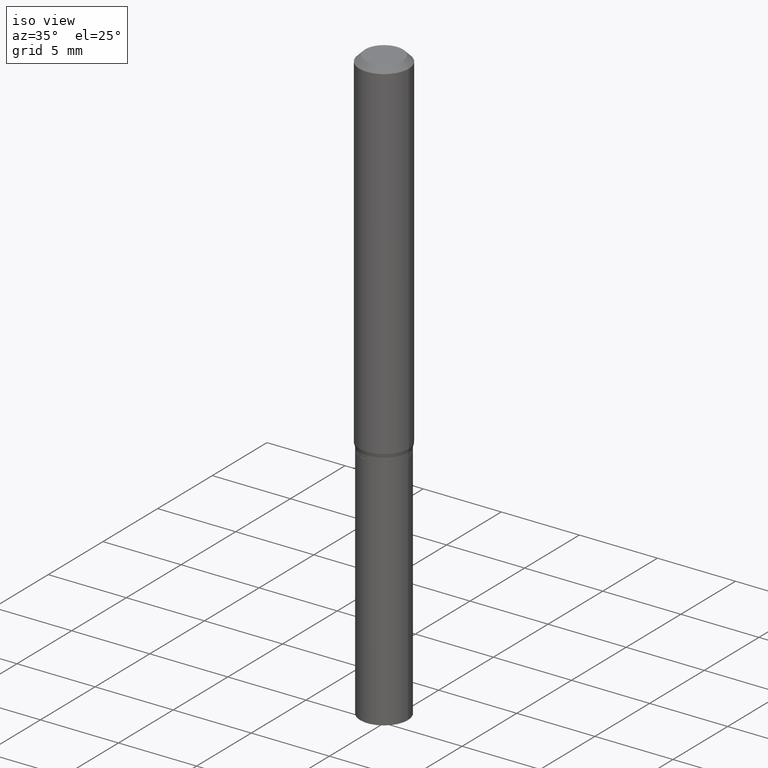
[diagram: clean part render]
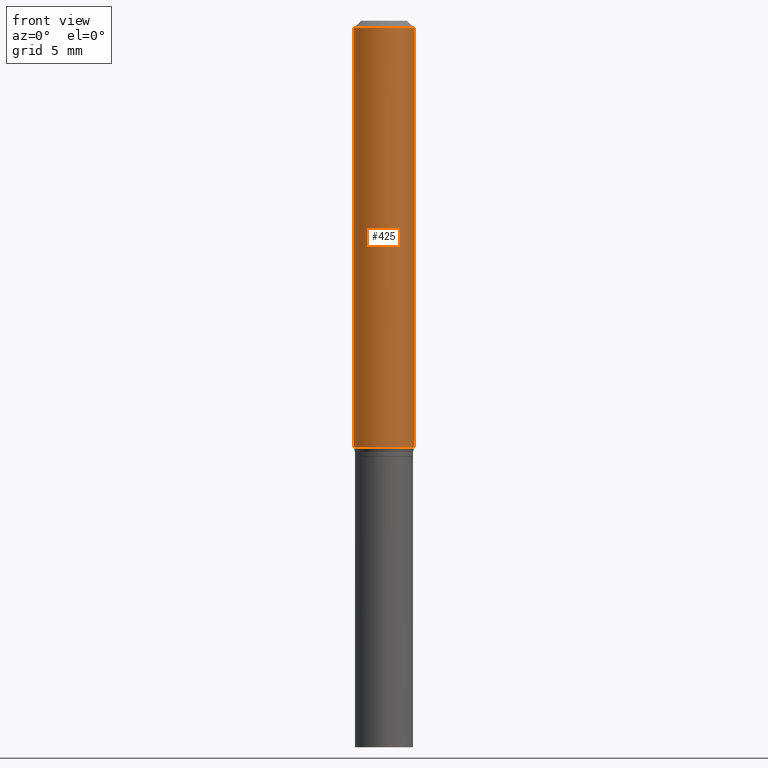
[diagram: tour spotlight — one face highlighted and labeled with its STEP entity id]
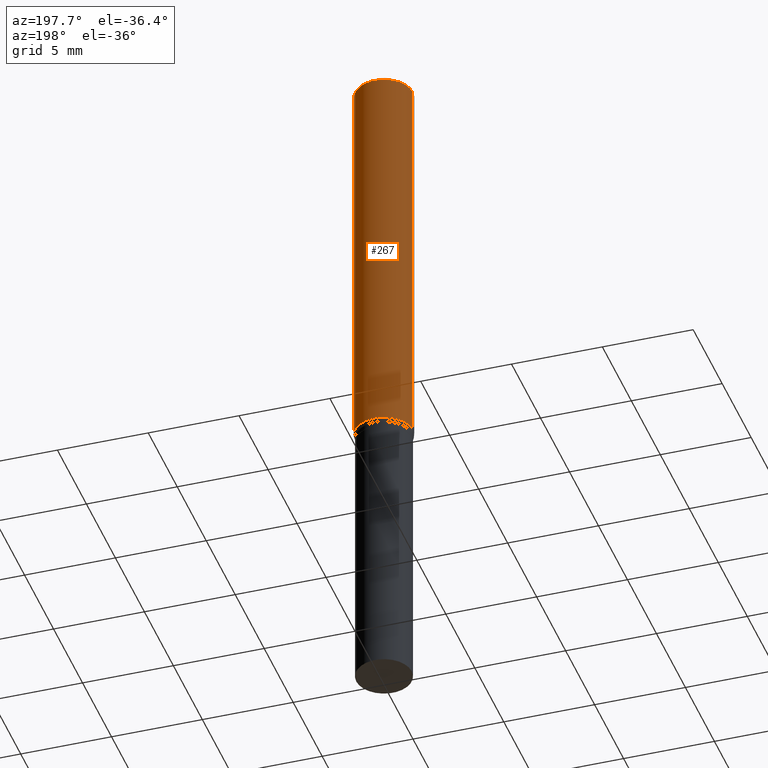
[diagram: tour spotlight — one face highlighted and labeled with its STEP entity id]
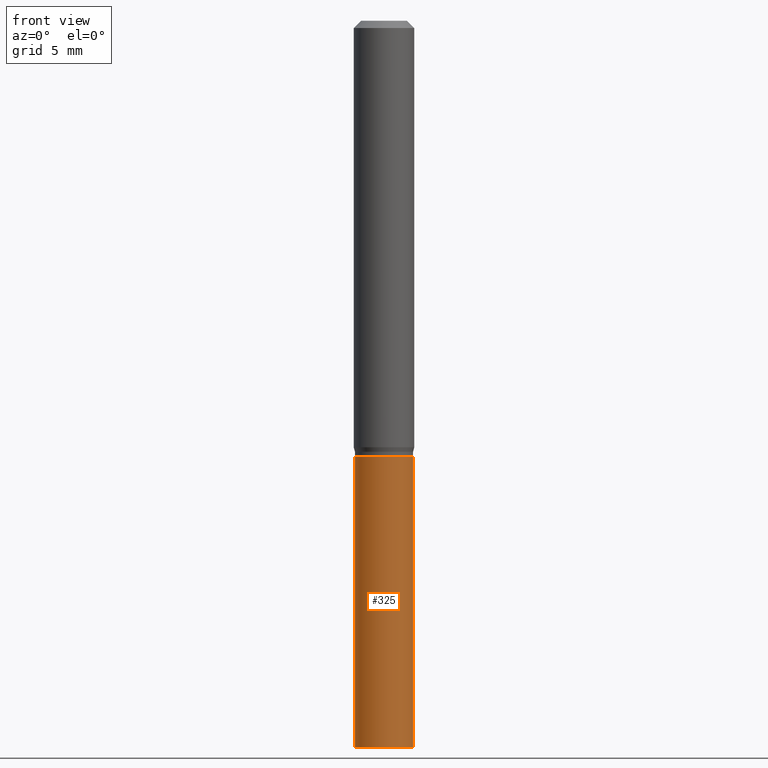
[diagram: tour spotlight — one face highlighted and labeled with its STEP entity id]
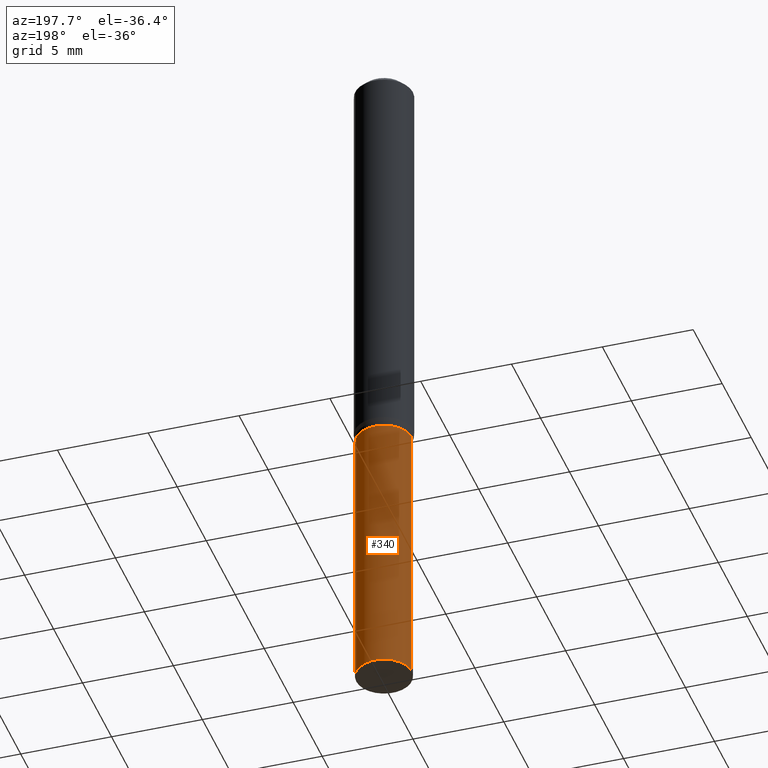
[diagram: tour spotlight — one face highlighted and labeled with its STEP entity id]
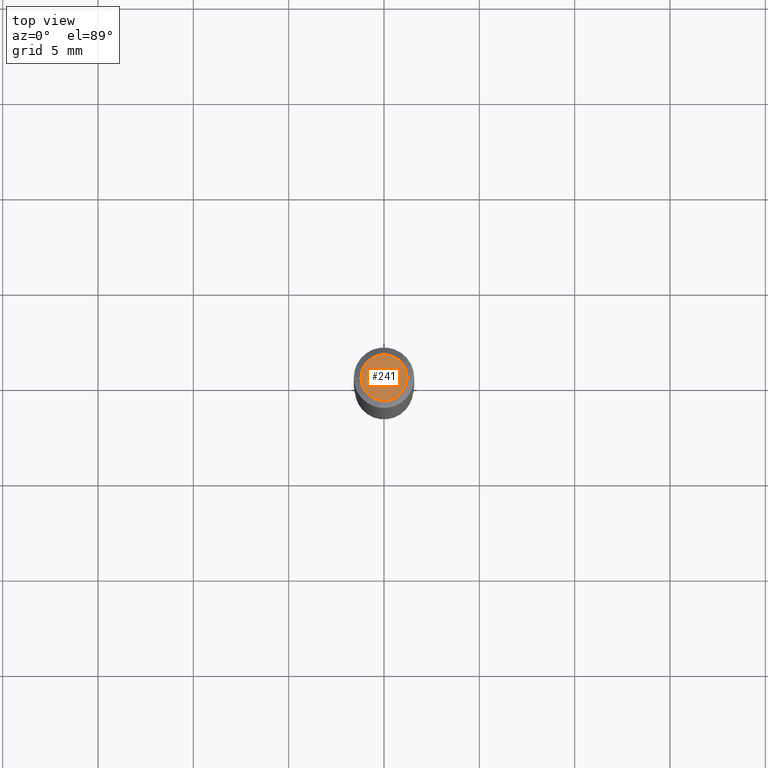
[diagram: tour spotlight — one face highlighted and labeled with its STEP entity id]
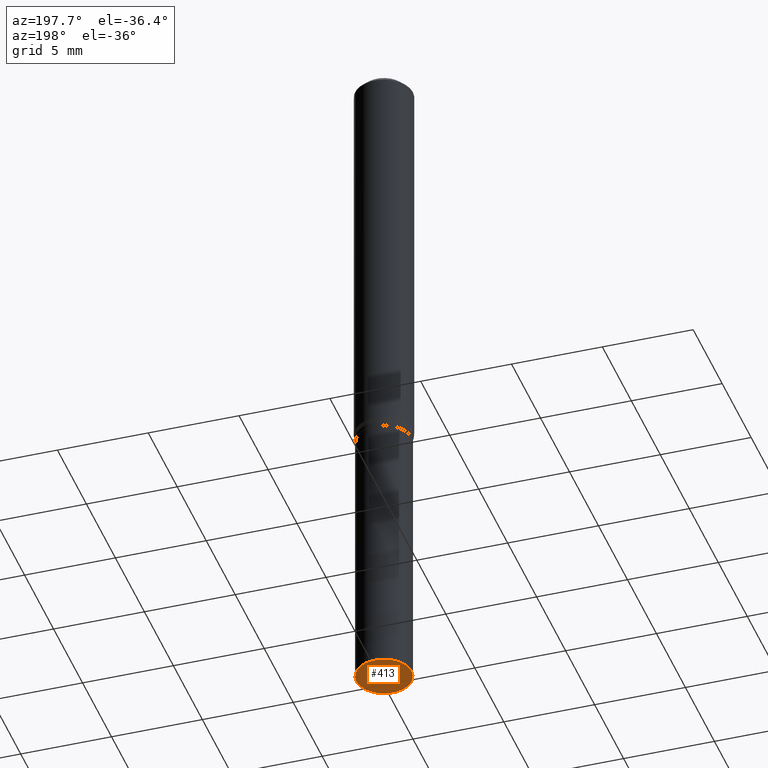
[diagram: tour spotlight — one face highlighted and labeled with its STEP entity id]
A machine part: a face-by-face anatomy tour. The part has 16 B-rep faces; the first image is the clean iso view, then the 6 largest visible faces are spotlighted one at a time (largest first), each with its STEP entity span.

Face 1 — front view, entity #425. In plain terms, the highlighted cylindrical surface (edge-blend (fillet) strip) has radius 1.5875 mm, axis along (-0, 0, 1).
Definition (entity closure, byte-faithful):
#19 = VERTEX_POINT ( 'NONE', #88 ) ;
#22 = EDGE_CURVE ( 'NONE', #263, #113, #366, .T. ) ;
#25 = VECTOR ( 'NONE', #125, 39.37007874015748143 ) ;
#31 = CARTESIAN_POINT ( 'NONE',  ( -0.06250000000000000000, -2.630753217344736608E-15, -0.8806698729810786830 ) ) ;
#47 = CARTESIAN_POINT ( 'NONE',  ( 0.06250000000000000000, -4.364351673553916694E-16, 3.047610484872459871E-30 ) ) ;
#54 = CARTESIAN_POINT ( 'NONE',  ( 2.153650702922254231E-29, -3.074842427194799224E-15, -0.8806698729810786830 ) ) ;
#59 = EDGE_CURVE ( 'NONE', #263, #19, #235, .T. ) ;
#63 = EDGE_CURVE ( 'NONE', #19, #266, #193, .T. ) ;
#67 = CARTESIAN_POINT ( 'NONE',  ( 3.668203209277705088E-31, -5.237222008264718399E-17, -0.01499999999999999944 ) ) ;
#79 = VECTOR ( 'NONE', #408, 39.37007874015748143 ) ;
#86 = CARTESIAN_POINT ( 'NONE',  ( -0.06250000000000000000, -1.119518113788660733E-15, -0.01499999999999999944 ) ) ;
#88 = CARTESIAN_POINT ( 'NONE',  ( 0.06250000000000000000, -3.511277594550191288E-15, -0.8806698729810786830 ) ) ;
#113 = VERTEX_POINT ( 'NONE', #86 ) ;
#120 = DIRECTION ( 'NONE',  ( 1.000000000000000000, -6.982962677686270655E-15, 0.000000000000000000 ) ) ;
#125 = DIRECTION ( 'NONE',  ( -2.445468806185136877E-29, 3.491481338843145188E-15, 1.000000000000000000 ) ) ;
#162 = DIRECTION ( 'NONE',  ( -2.445468806185136597E-29, 3.491481338843145583E-15, 1.000000000000000000 ) ) ;
#167 = DIRECTION ( 'NONE',  ( 1.000000000000000000, -6.982962677686266711E-15, 0.000000000000000000 ) ) ;
#170 = CIRCLE ( 'NONE', #274, 0.06250000000000000000 ) ;
#174 = DIRECTION ( 'NONE',  ( 1.000000000000000000, -6.982962677686266711E-15, 4.876176775795935793E-29 ) ) ;
#193 = LINE ( 'NONE', #47, #79 ) ;
#201 = CARTESIAN_POINT ( 'NONE',  ( -0.06250000000000000000, 4.440892098500626162E-16, -3.074334431409316114E-30 ) ) ;
#212 = FACE_OUTER_BOUND ( 'NONE', #256, .T. ) ;
#213 = ORIENTED_EDGE ( 'NONE', *, *, #63, .T. ) ;
#235 = CIRCLE ( 'NONE', #352, 0.06250000000000000000 ) ;
#251 = ORIENTED_EDGE ( 'NONE', *, *, #59, .T. ) ;
#255 = EDGE_CURVE ( 'NONE', #113, #266, #170, .T. ) ;
#256 = EDGE_LOOP ( 'NONE', ( #283, #251, #213, #459 ) ) ;
#263 = VERTEX_POINT ( 'NONE', #31 ) ;
#266 = VERTEX_POINT ( 'NONE', #313 ) ;
#274 = AXIS2_PLACEMENT_3D ( 'NONE', #67, #162, #167 ) ;
#283 = ORIENTED_EDGE ( 'NONE', *, *, #22, .F. ) ;
#313 = CARTESIAN_POINT ( 'NONE',  ( 0.06250000000000000000, -4.888073874380388472E-16, -0.01499999999999999944 ) ) ;
#339 = DIRECTION ( 'NONE',  ( -2.445468806185136597E-29, 3.491481338843145583E-15, 1.000000000000000000 ) ) ;
#352 = AXIS2_PLACEMENT_3D ( 'NONE', #54, #339, #120 ) ;
#366 = LINE ( 'NONE', #201, #25 ) ;
#398 = DIRECTION ( 'NONE',  ( -2.445468806185136597E-29, 3.491481338843145583E-15, 1.000000000000000000 ) ) ;
#408 = DIRECTION ( 'NONE',  ( -2.445468806185136877E-29, 3.491481338843145188E-15, 1.000000000000000000 ) ) ;
#420 = AXIS2_PLACEMENT_3D ( 'NONE', #434, #398, #174 ) ;
#425 = ADVANCED_FACE ( 'NONE', ( #212 ), #428, .T. ) ;
#428 = CYLINDRICAL_SURFACE ( 'NONE', #420, 0.06250000000000000000 ) ;
#434 = CARTESIAN_POINT ( 'NONE',  ( 0.000000000000000000, 0.000000000000000000, 0.000000000000000000 ) ) ;
#459 = ORIENTED_EDGE ( 'NONE', *, *, #255, .F. ) ;

Face 2 — auxiliary view, entity #267. In plain terms, the highlighted cylindrical surface (edge-blend (fillet) strip) has radius 1.5875 mm, axis along (-0, 0, 1).
Definition (entity closure, byte-faithful):
#14 = DIRECTION ( 'NONE',  ( 1.000000000000000000, -6.982962677686270655E-15, 0.000000000000000000 ) ) ;
#19 = VERTEX_POINT ( 'NONE', #88 ) ;
#22 = EDGE_CURVE ( 'NONE', #263, #113, #366, .T. ) ;
#23 = DIRECTION ( 'NONE',  ( -2.445468806185136597E-29, 3.491481338843145583E-15, 1.000000000000000000 ) ) ;
#25 = VECTOR ( 'NONE', #125, 39.37007874015748143 ) ;
#31 = CARTESIAN_POINT ( 'NONE',  ( -0.06250000000000000000, -2.630753217344736608E-15, -0.8806698729810786830 ) ) ;
#38 = EDGE_LOOP ( 'NONE', ( #106, #73, #321, #179 ) ) ;
#47 = CARTESIAN_POINT ( 'NONE',  ( 0.06250000000000000000, -4.364351673553916694E-16, 3.047610484872459871E-30 ) ) ;
#60 = DIRECTION ( 'NONE',  ( -2.445468806185136597E-29, 3.491481338843145583E-15, 1.000000000000000000 ) ) ;
#63 = EDGE_CURVE ( 'NONE', #19, #266, #193, .T. ) ;
#69 = CARTESIAN_POINT ( 'NONE',  ( 0.000000000000000000, 0.000000000000000000, 0.000000000000000000 ) ) ;
#73 = ORIENTED_EDGE ( 'NONE', *, *, #22, .T. ) ;
#79 = VECTOR ( 'NONE', #408, 39.37007874015748143 ) ;
#86 = CARTESIAN_POINT ( 'NONE',  ( -0.06250000000000000000, -1.119518113788660733E-15, -0.01499999999999999944 ) ) ;
#88 = CARTESIAN_POINT ( 'NONE',  ( 0.06250000000000000000, -3.511277594550191288E-15, -0.8806698729810786830 ) ) ;
#98 = EDGE_CURVE ( 'NONE', #19, #263, #453, .T. ) ;
#106 = ORIENTED_EDGE ( 'NONE', *, *, #98, .T. ) ;
#113 = VERTEX_POINT ( 'NONE', #86 ) ;
#125 = DIRECTION ( 'NONE',  ( -2.445468806185136877E-29, 3.491481338843145188E-15, 1.000000000000000000 ) ) ;
#129 = FACE_OUTER_BOUND ( 'NONE', #38, .T. ) ;
#130 = CARTESIAN_POINT ( 'NONE',  ( 3.668203209277705088E-31, -5.237222008264718399E-17, -0.01499999999999999944 ) ) ;
#159 = CARTESIAN_POINT ( 'NONE',  ( 2.153650702922254231E-29, -3.074842427194799224E-15, -0.8806698729810786830 ) ) ;
#179 = ORIENTED_EDGE ( 'NONE', *, *, #63, .F. ) ;
#190 = AXIS2_PLACEMENT_3D ( 'NONE', #69, #23, #460 ) ;
#193 = LINE ( 'NONE', #47, #79 ) ;
#197 = EDGE_CURVE ( 'NONE', #266, #113, #430, .T. ) ;
#201 = CARTESIAN_POINT ( 'NONE',  ( -0.06250000000000000000, 4.440892098500626162E-16, -3.074334431409316114E-30 ) ) ;
#204 = AXIS2_PLACEMENT_3D ( 'NONE', #159, #417, #14 ) ;
#257 = AXIS2_PLACEMENT_3D ( 'NONE', #130, #60, #310 ) ;
#263 = VERTEX_POINT ( 'NONE', #31 ) ;
#266 = VERTEX_POINT ( 'NONE', #313 ) ;
#267 = ADVANCED_FACE ( 'NONE', ( #129 ), #279, .T. ) ;
#279 = CYLINDRICAL_SURFACE ( 'NONE', #190, 0.06250000000000000000 ) ;
#310 = DIRECTION ( 'NONE',  ( 1.000000000000000000, -6.982962677686266711E-15, 0.000000000000000000 ) ) ;
#313 = CARTESIAN_POINT ( 'NONE',  ( 0.06250000000000000000, -4.888073874380388472E-16, -0.01499999999999999944 ) ) ;
#321 = ORIENTED_EDGE ( 'NONE', *, *, #197, .F. ) ;
#366 = LINE ( 'NONE', #201, #25 ) ;
#408 = DIRECTION ( 'NONE',  ( -2.445468806185136877E-29, 3.491481338843145188E-15, 1.000000000000000000 ) ) ;
#417 = DIRECTION ( 'NONE',  ( -2.445468806185136597E-29, 3.491481338843145583E-15, 1.000000000000000000 ) ) ;
#430 = CIRCLE ( 'NONE', #257, 0.06250000000000000000 ) ;
#453 = CIRCLE ( 'NONE', #204, 0.06250000000000000000 ) ;
#460 = DIRECTION ( 'NONE',  ( 1.000000000000000000, -6.982962677686266711E-15, 4.876176775795935793E-29 ) ) ;

Face 3 — front view, entity #325. In plain terms, the highlighted cylindrical surface (edge-blend (fillet) strip) has radius 1.524 mm, axis along (-0, 0, 1).
Definition (entity closure, byte-faithful):
#5 = VERTEX_POINT ( 'NONE', #450 ) ;
#6 = EDGE_CURVE ( 'NONE', #359, #5, #65, .T. ) ;
#12 = DIRECTION ( 'NONE',  ( 1.000000000000000000, -6.982962677686268288E-15, 0.000000000000000000 ) ) ;
#21 = VERTEX_POINT ( 'NONE', #337 ) ;
#34 = ORIENTED_EDGE ( 'NONE', *, *, #304, .F. ) ;
#45 = ORIENTED_EDGE ( 'NONE', *, *, #168, .T. ) ;
#65 = CIRCLE ( 'NONE', #384, 0.05999999999999999778 ) ;
#93 = EDGE_CURVE ( 'NONE', #359, #21, #377, .T. ) ;
#95 = LINE ( 'NONE', #316, #242 ) ;
#96 = DIRECTION ( 'NONE',  ( -2.445468806185136597E-29, 3.491481338843145583E-15, 1.000000000000000000 ) ) ;
#102 = DIRECTION ( 'NONE',  ( -2.445468806185136877E-29, 3.491481338843145188E-15, 1.000000000000000000 ) ) ;
#123 = CARTESIAN_POINT ( 'NONE',  ( 3.668203209277704895E-29, -5.237222008264718177E-15, -1.500000000000000222 ) ) ;
#135 = CARTESIAN_POINT ( 'NONE',  ( -0.05999999999999999778, -3.763451965155715313E-15, -1.500000000000000222 ) ) ;
#144 = EDGE_LOOP ( 'NONE', ( #329, #147, #45, #34 ) ) ;
#147 = ORIENTED_EDGE ( 'NONE', *, *, #6, .T. ) ;
#168 = EDGE_CURVE ( 'NONE', #5, #332, #95, .T. ) ;
#178 = DIRECTION ( 'NONE',  ( -2.445468806185136597E-29, 3.491481338843145583E-15, 1.000000000000000000 ) ) ;
#217 = DIRECTION ( 'NONE',  ( 1.000000000000000000, -6.982962677686267499E-15, 4.876176775795936353E-29 ) ) ;
#230 = DIRECTION ( 'NONE',  ( -2.445468806185136597E-29, 3.491481338843145583E-15, 1.000000000000000000 ) ) ;
#242 = VECTOR ( 'NONE', #102, 39.37007874015748143 ) ;
#272 = DIRECTION ( 'NONE',  ( -2.445468806185136877E-29, 3.491481338843145188E-15, 1.000000000000000000 ) ) ;
#275 = CARTESIAN_POINT ( 'NONE',  ( 2.200921925566623666E-29, -3.142333204958831853E-15, -0.9000000000000002442 ) ) ;
#289 = CYLINDRICAL_SURFACE ( 'NONE', #341, 0.05999999999999999778 ) ;
#304 = EDGE_CURVE ( 'NONE', #21, #332, #333, .T. ) ;
#316 = CARTESIAN_POINT ( 'NONE',  ( 0.05999999999999999778, -4.189777606611760421E-16, 2.925706065477561756E-30 ) ) ;
#322 = FACE_OUTER_BOUND ( 'NONE', #144, .T. ) ;
#325 = ADVANCED_FACE ( 'NONE', ( #322 ), #289, .T. ) ;
#329 = ORIENTED_EDGE ( 'NONE', *, *, #93, .F. ) ;
#332 = VERTEX_POINT ( 'NONE', #355 ) ;
#333 = CIRCLE ( 'NONE', #363, 0.05999999999999999778 ) ;
#337 = CARTESIAN_POINT ( 'NONE',  ( -0.05999999999999999778, -3.763451965155715313E-15, -0.9000000000000002442 ) ) ;
#341 = AXIS2_PLACEMENT_3D ( 'NONE', #400, #178, #217 ) ;
#355 = CARTESIAN_POINT ( 'NONE',  ( 0.05999999999999999778, -3.561310965620007698E-15, -0.9000000000000002442 ) ) ;
#359 = VERTEX_POINT ( 'NONE', #135 ) ;
#363 = AXIS2_PLACEMENT_3D ( 'NONE', #275, #96, #382 ) ;
#377 = LINE ( 'NONE', #415, #419 ) ;
#382 = DIRECTION ( 'NONE',  ( 1.000000000000000000, -6.982962677686268288E-15, 0.000000000000000000 ) ) ;
#384 = AXIS2_PLACEMENT_3D ( 'NONE', #123, #230, #12 ) ;
#400 = CARTESIAN_POINT ( 'NONE',  ( 0.000000000000000000, 0.000000000000000000, 0.000000000000000000 ) ) ;
#415 = CARTESIAN_POINT ( 'NONE',  ( -0.05999999999999999778, 4.263256414560600957E-16, -2.951361054152943413E-30 ) ) ;
#419 = VECTOR ( 'NONE', #272, 39.37007874015748143 ) ;
#450 = CARTESIAN_POINT ( 'NONE',  ( 0.05999999999999999778, -5.656199768925894810E-15, -1.500000000000000222 ) ) ;

Face 4 — auxiliary view, entity #340. In plain terms, the highlighted cylindrical surface (edge-blend (fillet) strip) has radius 1.524 mm, axis along (-0, 0, 1).
Definition (entity closure, byte-faithful):
#2 = FACE_OUTER_BOUND ( 'NONE', #115, .T. ) ;
#4 = DIRECTION ( 'NONE',  ( -2.445468806185136597E-29, 3.491481338843145583E-15, 1.000000000000000000 ) ) ;
#5 = VERTEX_POINT ( 'NONE', #450 ) ;
#21 = VERTEX_POINT ( 'NONE', #337 ) ;
#26 = AXIS2_PLACEMENT_3D ( 'NONE', #184, #134, #81 ) ;
#36 = ORIENTED_EDGE ( 'NONE', *, *, #406, .T. ) ;
#37 = DIRECTION ( 'NONE',  ( 1.000000000000000000, -6.982962677686268288E-15, 0.000000000000000000 ) ) ;
#81 = DIRECTION ( 'NONE',  ( 1.000000000000000000, -6.982962677686268288E-15, 0.000000000000000000 ) ) ;
#93 = EDGE_CURVE ( 'NONE', #359, #21, #377, .T. ) ;
#95 = LINE ( 'NONE', #316, #242 ) ;
#102 = DIRECTION ( 'NONE',  ( -2.445468806185136877E-29, 3.491481338843145188E-15, 1.000000000000000000 ) ) ;
#108 = CARTESIAN_POINT ( 'NONE',  ( 3.668203209277704895E-29, -5.237222008264718177E-15, -1.500000000000000222 ) ) ;
#115 = EDGE_LOOP ( 'NONE', ( #36, #118, #294, #403 ) ) ;
#118 = ORIENTED_EDGE ( 'NONE', *, *, #93, .T. ) ;
#134 = DIRECTION ( 'NONE',  ( -2.445468806185136597E-29, 3.491481338843145583E-15, 1.000000000000000000 ) ) ;
#135 = CARTESIAN_POINT ( 'NONE',  ( -0.05999999999999999778, -3.763451965155715313E-15, -1.500000000000000222 ) ) ;
#141 = DIRECTION ( 'NONE',  ( -2.445468806185136597E-29, 3.491481338843145583E-15, 1.000000000000000000 ) ) ;
#156 = CIRCLE ( 'NONE', #26, 0.05999999999999999778 ) ;
#168 = EDGE_CURVE ( 'NONE', #5, #332, #95, .T. ) ;
#182 = DIRECTION ( 'NONE',  ( 1.000000000000000000, -6.982962677686267499E-15, 4.876176775795936353E-29 ) ) ;
#184 = CARTESIAN_POINT ( 'NONE',  ( 2.200921925566623666E-29, -3.142333204958831853E-15, -0.9000000000000002442 ) ) ;
#200 = AXIS2_PLACEMENT_3D ( 'NONE', #221, #141, #182 ) ;
#221 = CARTESIAN_POINT ( 'NONE',  ( 0.000000000000000000, 0.000000000000000000, 0.000000000000000000 ) ) ;
#242 = VECTOR ( 'NONE', #102, 39.37007874015748143 ) ;
#272 = DIRECTION ( 'NONE',  ( -2.445468806185136877E-29, 3.491481338843145188E-15, 1.000000000000000000 ) ) ;
#294 = ORIENTED_EDGE ( 'NONE', *, *, #344, .F. ) ;
#316 = CARTESIAN_POINT ( 'NONE',  ( 0.05999999999999999778, -4.189777606611760421E-16, 2.925706065477561756E-30 ) ) ;
#332 = VERTEX_POINT ( 'NONE', #355 ) ;
#337 = CARTESIAN_POINT ( 'NONE',  ( -0.05999999999999999778, -3.763451965155715313E-15, -0.9000000000000002442 ) ) ;
#340 = ADVANCED_FACE ( 'NONE', ( #2 ), #389, .T. ) ;
#344 = EDGE_CURVE ( 'NONE', #332, #21, #156, .T. ) ;
#347 = AXIS2_PLACEMENT_3D ( 'NONE', #108, #4, #37 ) ;
#355 = CARTESIAN_POINT ( 'NONE',  ( 0.05999999999999999778, -3.561310965620007698E-15, -0.9000000000000002442 ) ) ;
#359 = VERTEX_POINT ( 'NONE', #135 ) ;
#377 = LINE ( 'NONE', #415, #419 ) ;
#379 = CIRCLE ( 'NONE', #347, 0.05999999999999999778 ) ;
#389 = CYLINDRICAL_SURFACE ( 'NONE', #200, 0.05999999999999999778 ) ;
#403 = ORIENTED_EDGE ( 'NONE', *, *, #168, .F. ) ;
#406 = EDGE_CURVE ( 'NONE', #5, #359, #379, .T. ) ;
#415 = CARTESIAN_POINT ( 'NONE',  ( -0.05999999999999999778, 4.263256414560600957E-16, -2.951361054152943413E-30 ) ) ;
#419 = VECTOR ( 'NONE', #272, 39.37007874015748143 ) ;
#450 = CARTESIAN_POINT ( 'NONE',  ( 0.05999999999999999778, -5.656199768925894810E-15, -1.500000000000000222 ) ) ;

Face 5 — top view, entity #241. In plain terms, the highlighted planar face has unit normal (0, -0, -1).
Definition (entity closure, byte-faithful):
#30 = DIRECTION ( 'NONE',  ( 2.438088387897960049E-29, -3.491481338843145188E-15, -1.000000000000000000 ) ) ;
#64 = DIRECTION ( 'NONE',  ( -2.445468806185136597E-29, 3.491481338843145583E-15, 1.000000000000000000 ) ) ;
#109 = VERTEX_POINT ( 'NONE', #305 ) ;
#158 = ORIENTED_EDGE ( 'NONE', *, *, #228, .T. ) ;
#165 = DIRECTION ( 'NONE',  ( -2.445468806185136597E-29, 3.491481338843145583E-15, 1.000000000000000000 ) ) ;
#205 = DIRECTION ( 'NONE',  ( 1.000000000000000000, -6.982962677686267499E-15, 4.852736867747366768E-29 ) ) ;
#207 = CARTESIAN_POINT ( 'NONE',  ( 4.865611903635008365E-45, -6.946804277620623666E-31, -1.989643822619527736E-16 ) ) ;
#216 = EDGE_LOOP ( 'NONE', ( #158, #437 ) ) ;
#228 = EDGE_CURVE ( 'NONE', #441, #109, #314, .T. ) ;
#239 = CARTESIAN_POINT ( 'NONE',  ( 4.865611903635008365E-45, -6.946804277620623666E-31, -1.989643822619527736E-16 ) ) ;
#241 = ADVANCED_FACE ( 'NONE', ( #343 ), #278, .F. ) ;
#259 = CIRCLE ( 'NONE', #448, 0.04749999999999999362 ) ;
#278 = PLANE ( 'NONE',  #346 ) ;
#305 = CARTESIAN_POINT ( 'NONE',  ( 0.04749999999999999362, -4.035134999187581581E-16, -1.989643822619502098E-16 ) ) ;
#314 = CIRCLE ( 'NONE', #378, 0.04749999999999999362 ) ;
#317 = EDGE_CURVE ( 'NONE', #109, #441, #259, .T. ) ;
#343 = FACE_OUTER_BOUND ( 'NONE', #216, .T. ) ;
#346 = AXIS2_PLACEMENT_3D ( 'NONE', #386, #30, #423 ) ;
#360 = CARTESIAN_POINT ( 'NONE',  ( -0.04749999999999999362, 3.578768372314206562E-16, -1.989643822619551895E-16 ) ) ;
#378 = AXIS2_PLACEMENT_3D ( 'NONE', #207, #165, #387 ) ;
#386 = CARTESIAN_POINT ( 'NONE',  ( 3.316907271900976096E-16, 0.04749999999999999362, -2.653275547260257586E-16 ) ) ;
#387 = DIRECTION ( 'NONE',  ( 1.000000000000000000, -6.982962677686267499E-15, 4.852736867747366768E-29 ) ) ;
#423 = DIRECTION ( 'NONE',  ( -1.000000000000000000, 6.982962677686265922E-15, -4.876176775795935793E-29 ) ) ;
#437 = ORIENTED_EDGE ( 'NONE', *, *, #317, .T. ) ;
#441 = VERTEX_POINT ( 'NONE', #360 ) ;
#448 = AXIS2_PLACEMENT_3D ( 'NONE', #239, #64, #205 ) ;

Face 6 — auxiliary view, entity #413. In plain terms, the highlighted planar face has unit normal (-0, 0, 1).
Definition (entity closure, byte-faithful):
#3 = ORIENTED_EDGE ( 'NONE', *, *, #406, .F. ) ;
#4 = DIRECTION ( 'NONE',  ( -2.445468806185136597E-29, 3.491481338843145583E-15, 1.000000000000000000 ) ) ;
#5 = VERTEX_POINT ( 'NONE', #450 ) ;
#6 = EDGE_CURVE ( 'NONE', #359, #5, #65, .T. ) ;
#12 = DIRECTION ( 'NONE',  ( 1.000000000000000000, -6.982962677686268288E-15, 0.000000000000000000 ) ) ;
#20 = AXIS2_PLACEMENT_3D ( 'NONE', #245, #282, #210 ) ;
#37 = DIRECTION ( 'NONE',  ( 1.000000000000000000, -6.982962677686268288E-15, 0.000000000000000000 ) ) ;
#65 = CIRCLE ( 'NONE', #384, 0.05999999999999999778 ) ;
#82 = EDGE_LOOP ( 'NONE', ( #3, #166 ) ) ;
#103 = PLANE ( 'NONE',  #20 ) ;
#108 = CARTESIAN_POINT ( 'NONE',  ( 3.668203209277704895E-29, -5.237222008264718177E-15, -1.500000000000000222 ) ) ;
#123 = CARTESIAN_POINT ( 'NONE',  ( 3.668203209277704895E-29, -5.237222008264718177E-15, -1.500000000000000222 ) ) ;
#135 = CARTESIAN_POINT ( 'NONE',  ( -0.05999999999999999778, -3.763451965155715313E-15, -1.500000000000000222 ) ) ;
#166 = ORIENTED_EDGE ( 'NONE', *, *, #6, .F. ) ;
#210 = DIRECTION ( 'NONE',  ( 1.000000000000000000, -6.982962677686265922E-15, 4.876176775795935793E-29 ) ) ;
#230 = DIRECTION ( 'NONE',  ( -2.445468806185136597E-29, 3.491481338843145583E-15, 1.000000000000000000 ) ) ;
#245 = CARTESIAN_POINT ( 'NONE',  ( 3.576687321579069994E-29, -5.368277968210015545E-15, -1.500000000000000222 ) ) ;
#281 = FACE_OUTER_BOUND ( 'NONE', #82, .T. ) ;
#282 = DIRECTION ( 'NONE',  ( -2.438088387897960049E-29, 3.491481338843145188E-15, 1.000000000000000000 ) ) ;
#347 = AXIS2_PLACEMENT_3D ( 'NONE', #108, #4, #37 ) ;
#359 = VERTEX_POINT ( 'NONE', #135 ) ;
#379 = CIRCLE ( 'NONE', #347, 0.05999999999999999778 ) ;
#384 = AXIS2_PLACEMENT_3D ( 'NONE', #123, #230, #12 ) ;
#406 = EDGE_CURVE ( 'NONE', #5, #359, #379, .T. ) ;
#413 = ADVANCED_FACE ( 'NONE', ( #281 ), #103, .F. ) ;
#450 = CARTESIAN_POINT ( 'NONE',  ( 0.05999999999999999778, -5.656199768925894810E-15, -1.500000000000000222 ) ) ;